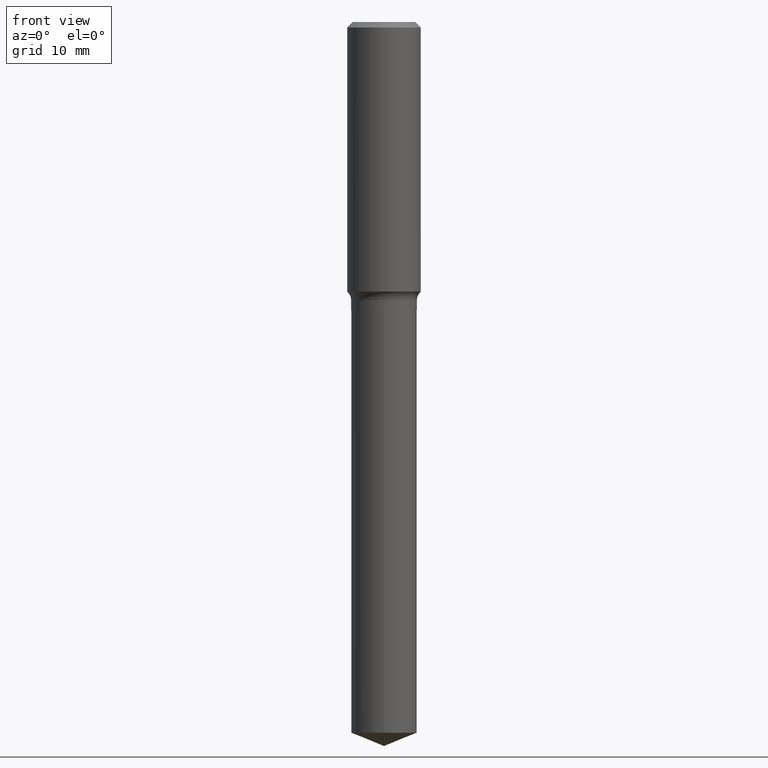
[diagram: clean part render]
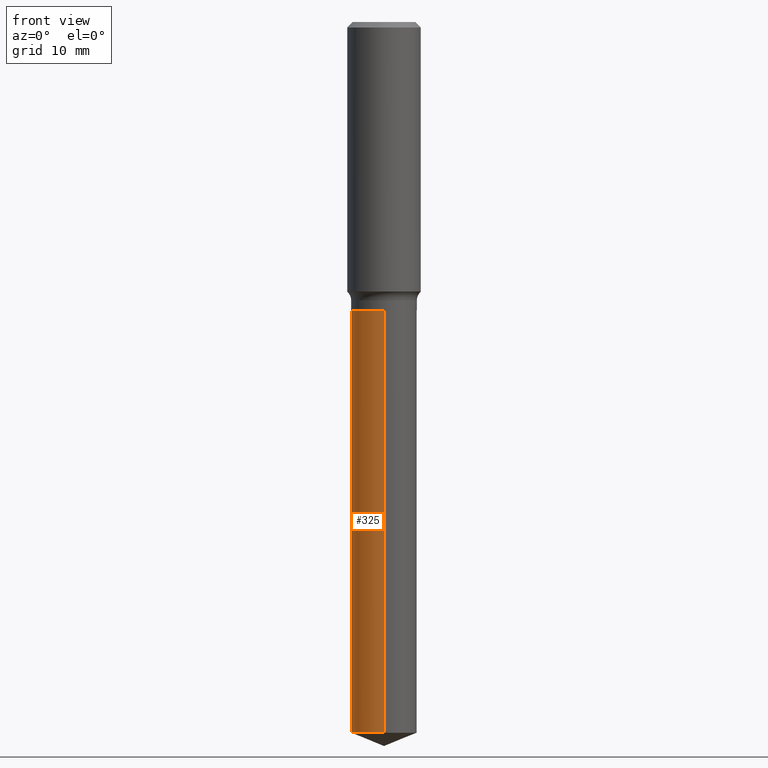
[diagram: same view with one face highlighted and labeled with its STEP entity id]
A machine part, front view. The second image highlights one B-rep face of the part: STEP entity #325.
In plain terms, the highlighted cylindrical surface (edge-blend (fillet) strip) has radius 5.3505 mm, axis along (-0, 0, 1).
Its self-contained STEP definition (entity closure, byte-faithful):
#26 = CARTESIAN_POINT ( 'NONE',  ( 1.496758272878762496E-15, 0.2106499999999841000, -4.560891875527826045 ) ) ;
#39 = VECTOR ( 'NONE', #227, 39.37007874015748143 ) ;
#64 = LINE ( 'NONE', #209, #389 ) ;
#66 = CARTESIAN_POINT ( 'NONE',  ( 4.525829119606832626E-29, -6.461684513797009689E-15, -1.850700000000000012 ) ) ;
#88 = ORIENTED_EDGE ( 'NONE', *, *, #353, .T. ) ;
#112 = LINE ( 'NONE', #261, #39 ) ;
#118 = DIRECTION ( 'NONE',  ( -2.445463332132347352E-29, 3.491489177998303329E-15, 1.000000000000000000 ) ) ;
#130 = CARTESIAN_POINT ( 'NONE',  ( 1.496758272878762890E-15, 0.2106499999999935646, -1.850700000000000900 ) ) ;
#134 = ORIENTED_EDGE ( 'NONE', *, *, #268, .F. ) ;
#140 = DIRECTION ( 'NONE',  ( -2.445463332132347352E-29, 3.491489177998303329E-15, 1.000000000000000000 ) ) ;
#143 = AXIS2_PLACEMENT_3D ( 'NONE', #66, #140, #291 ) ;
#145 = DIRECTION ( 'NONE',  ( -2.445463332132347352E-29, 3.491489177998303329E-15, 1.000000000000000000 ) ) ;
#155 = FACE_OUTER_BOUND ( 'NONE', #162, .T. ) ;
#157 = ORIENTED_EDGE ( 'NONE', *, *, #214, .F. ) ;
#162 = EDGE_LOOP ( 'NONE', ( #157, #407, #88, #134 ) ) ;
#179 = VERTEX_POINT ( 'NONE', #461 ) ;
#182 = VERTEX_POINT ( 'NONE', #130 ) ;
#185 = CARTESIAN_POINT ( 'NONE',  ( 1.115350397425312499E-28, -1.592429011750133735E-14, -4.560891875527825157 ) ) ;
#188 = AXIS2_PLACEMENT_3D ( 'NONE', #185, #145, #267 ) ;
#209 = CARTESIAN_POINT ( 'NONE',  ( 1.496758272878696232E-15, 0.2106499999999935646, -1.850700000000000900 ) ) ;
#214 = EDGE_CURVE ( 'NONE', #231, #182, #64, .T. ) ;
#227 = DIRECTION ( 'NONE',  ( -2.445463332132347072E-29, 3.491489177998303329E-15, 1.000000000000000000 ) ) ;
#231 = VERTEX_POINT ( 'NONE', #26 ) ;
#235 = DIRECTION ( 'NONE',  ( -6.982962677686265922E-15, -1.000000000000000000, 3.890597664843479129E-15 ) ) ;
#261 = CARTESIAN_POINT ( 'NONE',  ( -1.470961088054566598E-15, -0.2106500000000064710, -1.850699999999999124 ) ) ;
#263 = CIRCLE ( 'NONE', #143, 0.2106500000000000039 ) ;
#267 = DIRECTION ( 'NONE',  ( -6.982962677686265922E-15, -1.000000000000000000, 2.593731776562319814E-15 ) ) ;
#268 = EDGE_CURVE ( 'NONE', #182, #179, #263, .T. ) ;
#291 = DIRECTION ( 'NONE',  ( -6.982962677686265922E-15, -1.000000000000000000, 3.890597664843479129E-15 ) ) ;
#304 = CARTESIAN_POINT ( 'NONE',  ( 4.525829119606832626E-29, -6.461684513797009689E-15, -1.850700000000000012 ) ) ;
#325 = ADVANCED_FACE ( 'NONE', ( #155 ), #408, .T. ) ;
#340 = VERTEX_POINT ( 'NONE', #400 ) ;
#353 = EDGE_CURVE ( 'NONE', #340, #179, #112, .T. ) ;
#355 = DIRECTION ( 'NONE',  ( -2.445463332132347072E-29, 3.491489177998303329E-15, 1.000000000000000000 ) ) ;
#383 = EDGE_CURVE ( 'NONE', #231, #340, #402, .T. ) ;
#389 = VECTOR ( 'NONE', #355, 39.37007874015748143 ) ;
#400 = CARTESIAN_POINT ( 'NONE',  ( -1.470961088054500137E-15, -0.2106500000000159356, -4.560891875527825157 ) ) ;
#402 = CIRCLE ( 'NONE', #188, 0.2106500000000000039 ) ;
#407 = ORIENTED_EDGE ( 'NONE', *, *, #383, .T. ) ;
#408 = CYLINDRICAL_SURFACE ( 'NONE', #428, 0.2106500000000000039 ) ;
#428 = AXIS2_PLACEMENT_3D ( 'NONE', #304, #118, #235 ) ;
#461 = CARTESIAN_POINT ( 'NONE',  ( -1.470961088054566598E-15, -0.2106500000000064710, -1.850699999999999124 ) ) ;